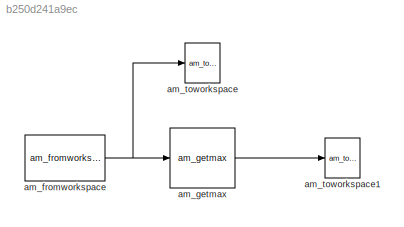
MODEL slx_b250d241a9ec
KIND model
CONFIG AbsTol = auto
CONFIG EnableMultiTasking = off
CONFIG FixedStep = auto
CONFIG MaxStep = auto
CONFIG MinStep = auto
CONFIG RelTol = 1e-3
CONFIG SampleTimeConstraint = Unconstrained
CONFIG SolverName = VariableStepAuto
CONFIG StartTime = 0.0
CONFIG StopTime = 10.0
BLOCK [Reference] am_fromworkspace  REF=NSA_DEVS_SOURCES/am_fromworkspace
  SourceBlock = NSA_DEVS_SOURCES/am_fromworkspace
  SourceProductName = Sources
  SourceType = Fromworkspace
BLOCK [Reference] am_getmax  REF=NSA_DEVS_STATISTICS/am_getmax
  SourceBlock = NSA_DEVS_STATISTICS/am_getmax
  SourceProductName = Statistics
  SourceType = Getmax
BLOCK [Reference] am_toworkspace  REF=NSA_DEVS_SINKS/am_toworkspace
  SourceBlock = NSA_DEVS_SINKS/am_toworkspace
  SourceProductName = Sinks
  SourceType = ToWorkspace
BLOCK [Reference] am_toworkspace1  REF=NSA_DEVS_SINKS/am_toworkspace
  SourceBlock = NSA_DEVS_SINKS/am_toworkspace
  SourceProductName = Sinks
  SourceType = ToWorkspace
NET am_fromworkspace:1 -> am_getmax:1, am_toworkspace:1
LINE am_getmax:1 -> am_toworkspace1:1
note: NET lines group one-source signal fan-out (src -> all destinations, sorted); 1:1 wires keep LINE
